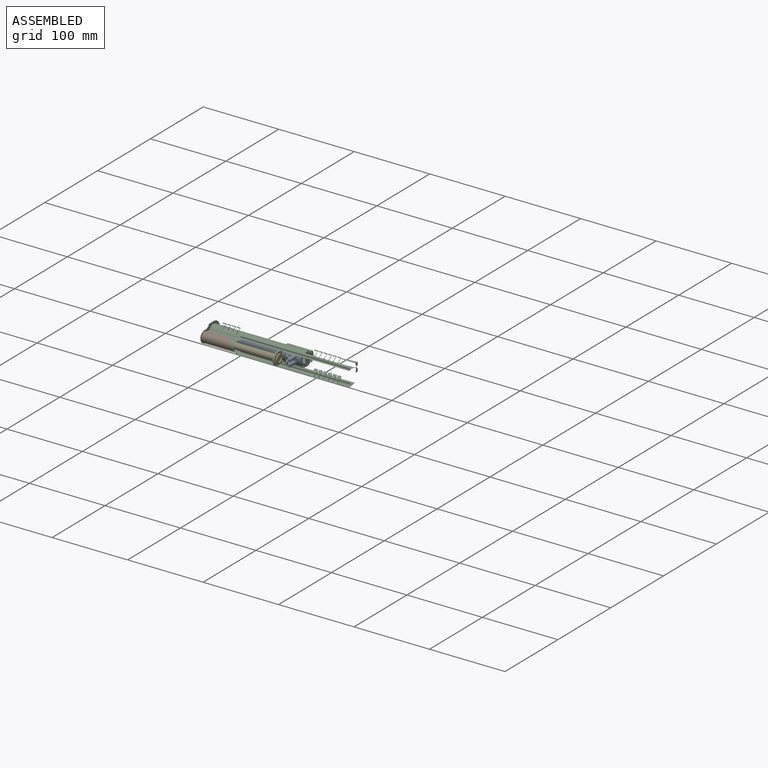
[diagram: assembled view]
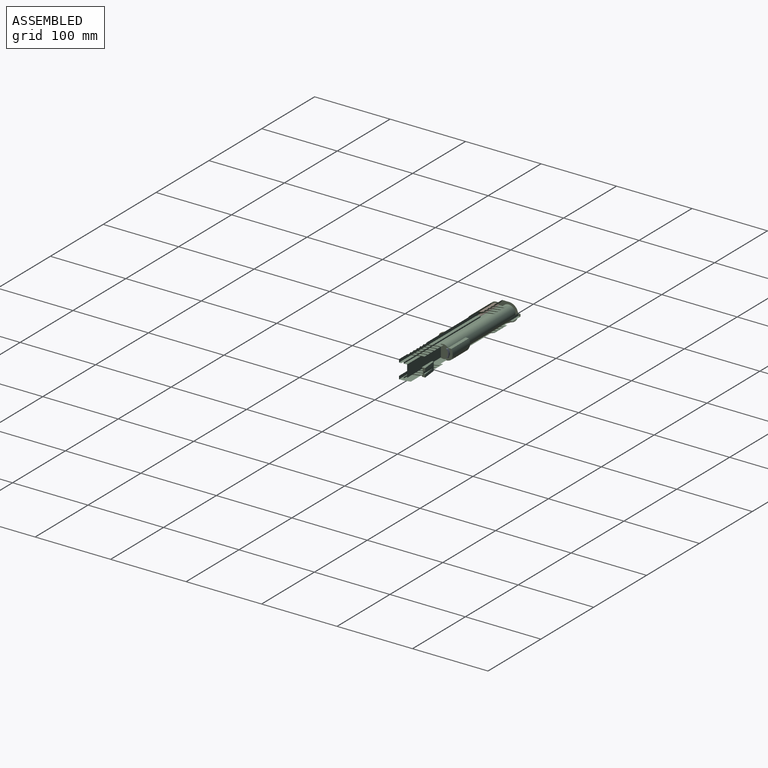
[diagram: assembled view, second angle]
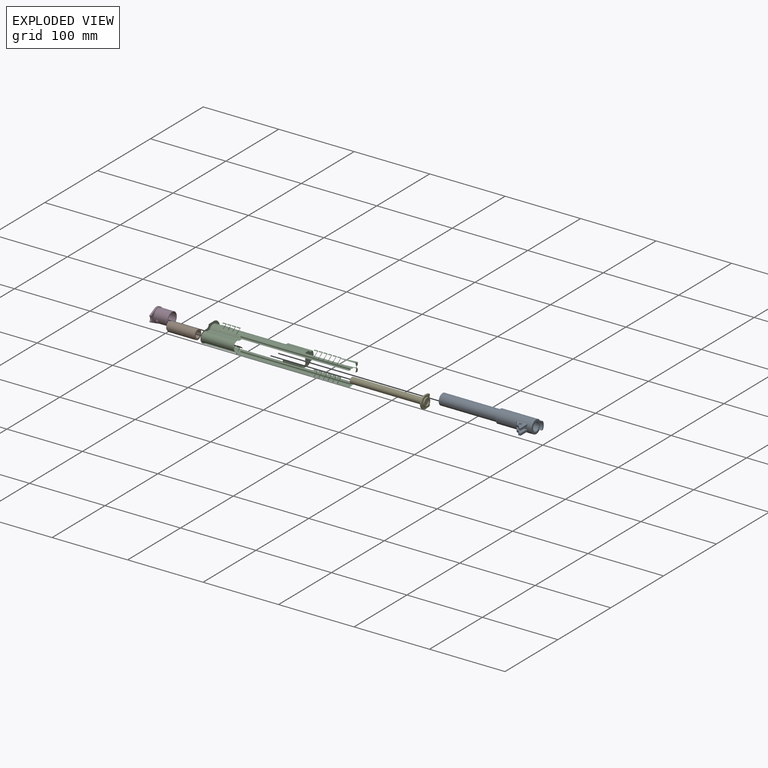
[diagram: exploded view]
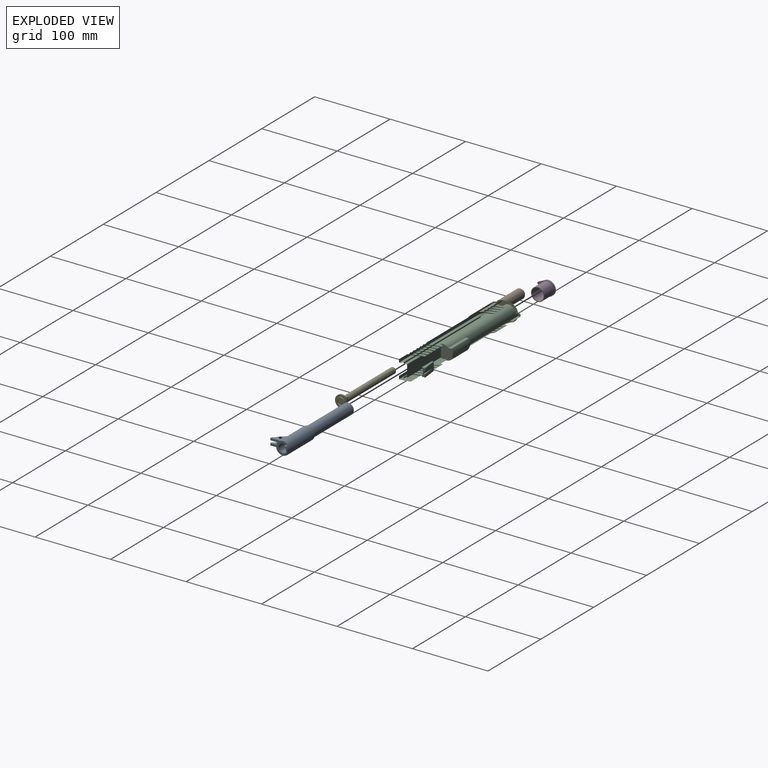
[diagram: exploded view, second angle]
ASSEMBLY  parts=5 mates=4
PART A: 30 faces, bbox 17.5x29.5x128 mm
  f0: plane 17.48x16.04mm, normal (0,0,-1), area 121.2mm2, adj f7,f9,f26,f27,f28
  f1: plane 2.93x2.8mm, normal (0,-1,0), area 8.2mm2, adj f6,f15,f18,f22
  f2: plane 2.8x1.25mm, normal (0,0,1), area 1.7mm2, adj f7,f12,f19,f25
  f3: plane 13.27x2.8mm, normal (0,0,-1), area 35.4mm2, adj f7,f12,f13,f19
  f4: cylinder r=2mm len=4mm, axis (-1,0,0), area 35.2mm2, adj f12,f19
  f5: plane 3.47x2.8mm, normal (0,-0.55,0.84), area 11.6mm2, adj f12,f19,f21,f25
  f6: plane 14.1x13.27mm, normal (-1,0,0), area 103mm2, adj f1,f7,f14,f15,f16,f17,f20,f22
  f7: cylinder r=8.74mm len=51.8mm, axis (0,0,-1), area 2586.4mm2, adj f0,f2,f3,f6,f8,f12,f14,f15
  f8: plane 17.48x17.48mm, normal (0,0,1), area 72.6mm2, adj f7,f10
  f9: cylinder r=5.69mm len=124mm, axis (0,0,-1), area 4433.2mm2, adj f0,f11
  f10: cylinder r=7.3mm len=76.2mm, axis (0,0,-1), area 3495.1mm2, adj f8,f11
  f11: plane 14.6x14.6mm, normal (0,0,1), area 65.7mm2, adj f9,f10
  f12: plane 14.1x13.27mm, normal (1,0,0), area 103mm2, adj f2,f3,f4,f5,f7,f13,f21,f23
  f13: plane 2.93x2.8mm, normal (0,-1,0), area 8.2mm2, adj f3,f12,f19,f23
  f14: plane 2.8x1.25mm, normal (0,0,1), area 1.7mm2, adj f6,f7,f18,f24
  f15: plane 13.27x2.8mm, normal (0,0,-1), area 35.4mm2, adj f1,f6,f7,f18
  f16: cylinder r=2mm len=4mm, axis (-1,0,0), area 35.2mm2, adj f6,f18
  f17: plane 3.47x2.8mm, normal (0,-0.55,0.84), area 11.6mm2, adj f6,f18,f20,f24
  f18: plane 14.1x12.19mm, normal (1,0,0), area 87.8mm2, adj f1,f7,f14,f15,f16,f17,f20,f22
  f19: plane 14.1x12.19mm, normal (-1,0,0), area 87.8mm2, adj f2,f3,f4,f5,f7,f13,f21,f23
  f20: cylinder r=5mm len=3.07mm, axis (-1,0,0), area 10.7mm2, adj f6,f17,f18,f22
  f21: cylinder r=5mm len=3.07mm, axis (-1,0,0), area 10.7mm2, adj f5,f12,f19,f23
  f22: cylinder r=5mm len=4.67mm, axis (1,0,0), area 18.3mm2, adj f1,f6,f18,f20
  f23: cylinder r=5mm len=4.67mm, axis (1,0,0), area 18.3mm2, adj f12,f13,f19,f21
  f24: cylinder r=5mm len=2.8mm, axis (1,0,0), area 7.4mm2, adj f6,f14,f17,f18
  f25: cylinder r=5mm len=2.8mm, axis (1,0,0), area 7.4mm2, adj f2,f5,f12,f19
  f26: plane 4x1.96mm, normal (1,0,0), area 7.8mm2, adj f0,f7,f28,f29
  f27: plane 4x1.96mm, normal (-1,0,0), area 7.8mm2, adj f0,f7,f28,f29
  f28: cylinder r=7.3mm len=10.8mm, axis (0,0,1), area 48.6mm2, adj f0,f26,f27,f29
  f29: plane 10.8x3.83mm, normal (0,0,-1), area 17.1mm2, adj f7,f26,f27,f28
PART B: 6 faces, bbox 12.6x12.6x38.6 mm
  f0: cylinder r=6.29mm len=36.7mm, axis (0,0,-1), area 1451.6mm2, adj f1,f2
  f1: plane 12.59x12.59mm, normal (0,0,1), area 46mm2, adj f0,f4
  f2: plane 12.59x12.59mm, normal (0,0,-1), area 69.1mm2, adj f0,f3
  f3: cylinder r=4.2mm len=38.6mm, axis (0,0,-1), area 1018.6mm2, adj f2,f5
  f4: cylinder r=5mm len=10mm, axis (0,0,-1), area 59.7mm2, adj f1,f5
  f5: plane 10x10mm, normal (0,0,1), area 23.1mm2, adj f3,f4
PART C: 134 faces, bbox 189x40x24 mm
  f0: plane 19.4x4.41mm, normal (0,0,-1), area 64.2mm2, adj f1,f128,f132,f133
  f1: cylinder r=12.01mm len=186.59mm, axis (-1,0,0), area 5313mm2, adj f0,f2,f33,f34,f35,f36,f37,f38
  f2: plane 21.13x14.11mm, normal (0,0,1), area 250.7mm2, adj f1,f3,f33,f126
  f3: plane 155.67x4.2mm, normal (0,-1,0), area 581.8mm2, adj f2,f4,f29,f30,f32,f33,f34,f35
  f4: plane 20.68x19.3mm, normal (1,0,0), area 103.2mm2, adj f3,f5,f6,f8,f9,f10,f11,f12
  f5: plane 43x5.13mm, normal (0,0,-1), area 220.5mm2, adj f4,f21,f28,f77
  f6: plane 145.58x4mm, normal (0,0,-1), area 526.8mm2, adj f4,f7,f8,f21,f97,f126
  f7: plane 63.81x16mm, normal (0,-1,0), area 1020.9mm2, adj f6,f20,f97,f126
  f8: plane 145.58x1.65mm, normal (0,-1,0), area 240.2mm2, adj f4,f6,f9,f126
  f9: plane 145.89x3mm, normal (0,0,-1), area 437.3mm2, adj f4,f8,f10,f126
  f10: plane 145.89x1.65mm, normal (0,1,0), area 240.7mm2, adj f4,f9,f29,f126
  f11: cylinder r=7.8mm len=43mm, axis (-1,0,0), area 1053.7mm2, adj f4,f12,f32,f77
  f12: plane 43x3.63mm, normal (0,0,-1), area 155.3mm2, adj f4,f11,f13,f14,f15,f77
  f13: cylinder r=4.22mm len=7.15mm, axis (0.71,-0.71,0), area 20.9mm2, adj f12,f14,f15,f92
  f14: cylinder r=4.22mm len=34.97mm, axis (1,0,0), area 213mm2, adj f12,f13,f77,f78,f79,f80,f81,f82
  f15: plane 155.67x4.2mm, normal (0,-1,0), area 581.8mm2, adj f4,f12,f13,f16,f92,f93,f101,f102
  f16: plane 146x3mm, normal (0,0,1), area 437.9mm2, adj f4,f15,f17,f126
  f17: plane 145.89x1.65mm, normal (0,1,0), area 240.7mm2, adj f4,f16,f18,f126
  f18: plane 145.89x3mm, normal (0,0,1), area 437.3mm2, adj f4,f17,f19,f126
  f19: plane 145.58x1.65mm, normal (0,-1,0), area 240.2mm2, adj f4,f18,f20,f126
  f20: plane 145.58x4mm, normal (0,0,1), area 526.8mm2, adj f4,f7,f19,f21,f97,f126
  f21: cylinder r=8.88mm len=124mm, axis (-1,0,0), area 4153.9mm2, adj f4,f5,f6,f20,f22,f24,f25,f26
  f22: plane 20.16x8.92mm, normal (1,0,0), area 44.7mm2, adj f21,f23,f24,f27
  f23: cylinder r=10.75mm len=20.16mm, axis (-1,0,0), area 79.8mm2, adj f22,f24,f25,f27
  f24: plane 3x1.83mm, normal (0,-0.21,-0.98), area 5.6mm2, adj f21,f22,f23,f25
  f25: plane 20.16x8.92mm, normal (-1,0,0), area 44.7mm2, adj f21,f23,f24,f27
  f26: plane 23x3.15mm, normal (0,1,0), area 72.4mm2, adj f21,f94,f100,f101
  f27: plane 43x5.13mm, normal (0,0,1), area 214.1mm2, adj f4,f21,f22,f23,f25,f28,f77
  f28: cylinder r=6.28mm len=43mm, axis (-1,0,0), area 1232mm2, adj f4,f5,f27,f77
  f29: plane 146x3mm, normal (0,0,-1), area 437.9mm2, adj f3,f4,f10,f126
  f30: cylinder r=4.22mm len=7.15mm, axis (-0.71,0.71,0), area 20.9mm2, adj f3,f31,f32,f58
  f31: cylinder r=4.22mm len=34.97mm, axis (-1,0,0), area 213mm2, adj f30,f32,f58,f59,f60,f61,f62,f63
  f32: plane 43x3.63mm, normal (0,0,1), area 155.3mm2, adj f3,f4,f11,f30,f31,f77
  f33: plane 17.97x6.54mm, normal (-0.94,-0.34,0), area 14.1mm2, adj f1,f2,f3,f34
  f34: plane 17.97x11.33mm, normal (0,0,1), area 86.1mm2, adj f1,f3,f33,f35
  f35: plane 17.97x6.54mm, normal (0.94,0.34,0), area 14.1mm2, adj f1,f3,f34,f36
  f36: plane 14.11x6.52mm, normal (0,0,1), area 19.5mm2, adj f1,f3,f35,f37
  f37: plane 17.97x6.54mm, normal (-0.94,-0.34,0), area 14.1mm2, adj f1,f3,f36,f38
  f38: plane 17.97x11.33mm, normal (0,0,1), area 86.1mm2, adj f1,f3,f37,f39
  f39: plane 17.97x6.54mm, normal (0.94,0.34,0), area 14.1mm2, adj f1,f3,f38,f40
  f40: plane 14.11x6.52mm, normal (0,0,1), area 19.5mm2, adj f1,f3,f39,f41
  f41: plane 17.97x6.54mm, normal (-0.94,-0.34,0), area 14.1mm2, adj f1,f3,f40,f42
  f42: plane 17.97x11.33mm, normal (0,0,1), area 86.1mm2, adj f1,f3,f41,f43
  f43: plane 17.97x6.54mm, normal (0.94,0.34,0), area 14.1mm2, adj f1,f3,f42,f44
  f44: plane 14.11x6.52mm, normal (0,0,1), area 19.5mm2, adj f1,f3,f43,f45
  f45: plane 17.97x6.54mm, normal (-0.94,-0.34,0), area 14.1mm2, adj f1,f3,f44,f46
  f46: plane 17.97x11.33mm, normal (0,0,1), area 86.1mm2, adj f1,f3,f45,f47
  f47: plane 17.97x6.54mm, normal (0.94,0.34,0), area 14.1mm2, adj f1,f3,f46,f48
  f48: plane 14.11x6.52mm, normal (0,0,1), area 19.5mm2, adj f1,f3,f47,f49
  f49: plane 17.97x6.54mm, normal (-0.94,-0.34,0), area 14.1mm2, adj f1,f3,f48,f50
  f50: plane 17.97x11.33mm, normal (0,0,1), area 86.1mm2, adj f1,f3,f49,f51
  f51: plane 17.97x6.54mm, normal (0.94,0.34,0), area 14.1mm2, adj f1,f3,f50,f52
  f52: plane 14.11x6.52mm, normal (0,0,1), area 19.5mm2, adj f1,f3,f51,f53
  f53: plane 17.97x6.54mm, normal (-0.94,-0.34,0), area 14.1mm2, adj f1,f3,f52,f54
  f54: plane 17.97x11.33mm, normal (0,0,1), area 86.1mm2, adj f1,f3,f53,f55
  f55: plane 17.97x6.54mm, normal (0.94,0.34,0), area 14.1mm2, adj f1,f3,f54,f56
  f56: plane 103.07x14.11mm, normal (0,0,1), area 1381.6mm2, adj f1,f3,f55,f57
  f57: plane 17.97x6.54mm, normal (-0.94,-0.34,0), area 14.1mm2, adj f1,f3,f56,f58
  f58: plane 17.97x11.33mm, normal (0,0,1), area 72.5mm2, adj f1,f3,f30,f31,f57,f59
  f59: plane 13.77x5.02mm, normal (0.94,0.34,0), area 10.5mm2, adj f1,f31,f58,f60
  f60: plane 9.81x4.95mm, normal (0,0,1), area 13.6mm2, adj f1,f31,f59,f61
  f61: plane 13.77x5.02mm, normal (-0.94,-0.34,0), area 10.5mm2, adj f1,f31,f60,f62
  f62: plane 13.75x9.8mm, normal (0,0,1), area 65.9mm2, adj f1,f31,f61,f63
  f63: plane 13.77x5.02mm, normal (0.94,0.34,0), area 10.5mm2, adj f1,f31,f62,f64
  f64: plane 9.81x4.95mm, normal (0,0,1), area 13.6mm2, adj f1,f31,f63,f65
  f65: plane 13.77x5.02mm, normal (-0.94,-0.34,0), area 10.5mm2, adj f1,f31,f64,f66
  f66: plane 13.75x9.8mm, normal (0,0,1), area 65.9mm2, adj f1,f31,f65,f67
  f67: plane 13.77x5.02mm, normal (0.94,0.34,0), area 10.5mm2, adj f1,f31,f66,f68
  f68: plane 9.81x4.95mm, normal (0,0,1), area 13.6mm2, adj f1,f31,f67,f69
  f69: plane 13.77x5.02mm, normal (-0.94,-0.34,0), area 10.5mm2, adj f1,f31,f68,f70
  f70: plane 13.75x9.8mm, normal (0,0,1), area 65.9mm2, adj f1,f31,f69,f71
  f71: plane 13.77x5.02mm, normal (0.94,0.34,0), area 10.5mm2, adj f1,f31,f70,f72
  f72: plane 14.54x9.81mm, normal (0,0,1), area 125.1mm2, adj f1,f31,f71,f77
  f73: plane 15x3.11mm, normal (0,0,1), area 46.7mm2, adj f1,f74,f75,f77
  f74: plane 15x3.3mm, normal (0,1,0), area 49.5mm2, adj f73,f75,f76,f77
  f75: plane 3.3x3.11mm, normal (1,0,0), area 10mm2, adj f1,f73,f74,f76
  f76: plane 15x3.11mm, normal (0,0,-1), area 46.7mm2, adj f1,f74,f75,f77
  f77: plane 40x24mm, normal (-1,0,0), area 289.8mm2, adj f1,f5,f11,f12,f14,f21,f27,f28
  f78: plane 14.54x9.81mm, normal (0,0,-1), area 125.1mm2, adj f1,f14,f77,f79
  f79: plane 13.77x5.02mm, normal (0.94,0.34,0), area 10.5mm2, adj f1,f14,f78,f80
  f80: plane 13.75x9.8mm, normal (0,0,-1), area 65.9mm2, adj f1,f14,f79,f81
  f81: plane 13.77x5.02mm, normal (-0.94,-0.34,0), area 10.5mm2, adj f1,f14,f80,f82
  f82: plane 9.81x4.95mm, normal (0,0,-1), area 13.6mm2, adj f1,f14,f81,f83
  f83: plane 13.77x5.02mm, normal (0.94,0.34,0), area 10.5mm2, adj f1,f14,f82,f84
  f84: plane 13.75x9.8mm, normal (0,0,-1), area 65.9mm2, adj f1,f14,f83,f85
  f85: plane 13.77x5.02mm, normal (-0.94,-0.34,0), area 10.5mm2, adj f1,f14,f84,f86
  f86: plane 9.81x4.95mm, normal (0,0,-1), area 13.6mm2, adj f1,f14,f85,f87
  f87: plane 13.77x5.02mm, normal (0.94,0.34,0), area 10.5mm2, adj f1,f14,f86,f88
  f88: plane 13.75x9.8mm, normal (0,0,-1), area 65.9mm2, adj f1,f14,f87,f89
  f89: plane 13.77x5.02mm, normal (-0.94,-0.34,0), area 10.5mm2, adj f1,f14,f88,f90
  f90: plane 9.81x4.95mm, normal (0,0,-1), area 13.6mm2, adj f1,f14,f89,f91
  f91: plane 13.77x5.02mm, normal (0.94,0.34,0), area 10.5mm2, adj f1,f14,f90,f92
  f92: plane 17.97x11.33mm, normal (0,0,-1), area 72.5mm2, adj f1,f13,f14,f15,f91,f93
  f93: plane 17.97x6.54mm, normal (-0.94,-0.34,0), area 14.1mm2, adj f1,f15,f92,f101
  f94: cylinder r=3mm len=3.45mm, axis (0,0,-1), area 15.4mm2, adj f1,f21,f26,f95,f101
  f95: plane 17.86x10.1mm, normal (1,0,0), area 72.3mm2, adj f1,f21,f94,f96
  f96: plane 33x4.33mm, normal (0,0,-1), area 142.9mm2, adj f1,f21,f95,f97
  f97: plane 17.75x16.32mm, normal (-1,0,0), area 220.6mm2, adj f1,f6,f7,f20,f21,f96,f98
  f98: plane 4.05x4mm, normal (0,0,1), area 16.2mm2, adj f1,f21,f97,f99
  f99: plane 9.01x6.86mm, normal (-1,0,0), area 30.7mm2, adj f1,f21,f98,f100
  f100: cylinder r=3mm len=3.45mm, axis (0,0,-1), area 15.4mm2, adj f1,f21,f26,f99,f101
  f101: plane 103.07x14.11mm, normal (0,0,-1), area 1339.9mm2, adj f1,f15,f26,f93,f94,f100,f102
  f102: plane 17.97x6.54mm, normal (0.94,0.34,0), area 14.1mm2, adj f1,f15,f101,f103
  f103: plane 17.97x11.33mm, normal (0,0,-1), area 86.1mm2, adj f1,f15,f102,f104
  f104: plane 17.97x6.54mm, normal (-0.94,-0.34,0), area 14.1mm2, adj f1,f15,f103,f105
  f105: plane 14.11x6.52mm, normal (0,0,-1), area 19.5mm2, adj f1,f15,f104,f106
  f106: plane 17.97x6.54mm, normal (0.94,0.34,0), area 14.1mm2, adj f1,f15,f105,f107
  f107: plane 17.97x11.33mm, normal (0,0,-1), area 86.1mm2, adj f1,f15,f106,f108
  f108: plane 17.97x6.54mm, normal (-0.94,-0.34,0), area 14.1mm2, adj f1,f15,f107,f109
  f109: plane 14.11x6.52mm, normal (0,0,-1), area 19.5mm2, adj f1,f15,f108,f110
  f110: plane 17.97x6.54mm, normal (0.94,0.34,0), area 14.1mm2, adj f1,f15,f109,f111
  f111: plane 17.97x11.33mm, normal (0,0,-1), area 86.1mm2, adj f1,f15,f110,f112
  f112: plane 17.97x6.54mm, normal (-0.94,-0.34,0), area 14.1mm2, adj f1,f15,f111,f113
  f113: plane 14.11x6.52mm, normal (0,0,-1), area 19.5mm2, adj f1,f15,f112,f114
  f114: plane 17.97x6.54mm, normal (0.94,0.34,0), area 14.1mm2, adj f1,f15,f113,f115
  f115: plane 17.97x11.33mm, normal (0,0,-1), area 86.1mm2, adj f1,f15,f114,f116
  f116: plane 17.97x6.54mm, normal (-0.94,-0.34,0), area 14.1mm2, adj f1,f15,f115,f117
  f117: plane 14.11x6.52mm, normal (0,0,-1), area 19.5mm2, adj f1,f15,f116,f118
  f118: plane 17.97x6.54mm, normal (0.94,0.34,0), area 14.1mm2, adj f1,f15,f117,f119
  f119: plane 17.97x11.33mm, normal (0,0,-1), area 86.1mm2, adj f1,f15,f118,f120
  f120: plane 17.97x6.54mm, normal (-0.94,-0.34,0), area 14.1mm2, adj f1,f15,f119,f121
  f121: plane 14.11x6.52mm, normal (0,0,-1), area 19.5mm2, adj f1,f15,f120,f122
  f122: plane 17.97x6.54mm, normal (0.94,0.34,0), area 14.1mm2, adj f1,f15,f121,f123
  f123: plane 17.97x11.33mm, normal (0,0,-1), area 86.1mm2, adj f1,f15,f122,f124
  f124: plane 17.97x6.54mm, normal (-0.94,-0.34,0), area 14.1mm2, adj f1,f15,f123,f125
  f125: plane 21.13x14.11mm, normal (0,0,-1), area 250.7mm2, adj f1,f15,f124,f126
  f126: cylinder r=42.55mm len=25.65mm, axis (0,0,1), area 415.7mm2, adj f1,f2,f3,f6,f7,f8,f9,f10
  f127: plane 19.4x4.41mm, normal (0,0,1), area 64.2mm2, adj f1,f128,f132,f133
  f128: plane 11.3x4.41mm, normal (1,0,0), area 32.5mm2, adj f0,f1,f127,f129,f130,f131,f132
  f129: plane 17.59x2mm, normal (0,0,1), area 17.6mm2, adj f128,f131,f132
  f130: plane 17.59x2mm, normal (0,0,-1), area 17.6mm2, adj f128,f131,f132
  f131: plane 17.59x3.3mm, normal (0,1,0), area 58mm2, adj f128,f129,f130,f132
  f132: plane 19.4x11.3mm, normal (-0.11,0.99,0), area 162.2mm2, adj f0,f127,f128,f129,f130,f131,f133
  f133: plane 11.3x2.21mm, normal (-1,0,0), area 14.2mm2, adj f0,f1,f127,f132
PART D: 19 faces, bbox 19x23x20.8 mm
  f0: cylinder r=7.8mm len=20.3mm, axis (0,0,-1), area 994.9mm2, adj f2,f18
  f1: cylinder r=8.8mm len=18.5mm, axis (0,0,-1), area 1006.1mm2, adj f2,f10,f12,f13,f14,f15
  f2: plane 17.6x17.6mm, normal (0,0,1), area 52.2mm2, adj f0,f1
  f3: plane 22.99x19mm, normal (0,0,-1), area 112.6mm2, adj f4,f5,f6,f7,f8,f9,f18
  f4: cylinder r=0.7mm len=2.3mm, axis (0,0,-1), area 3mm2, adj f3,f5,f9,f10
  f5: cylinder r=4.62mm len=6.21mm, axis (0,0,-1), area 15.6mm2, adj f3,f4,f6,f10
  f6: cylinder r=0.7mm len=2.3mm, axis (0,0,-1), area 3mm2, adj f3,f5,f7,f10
  f7: plane 8.95x4.34mm, normal (0.9,-0.44,0), area 22.9mm2, adj f3,f6,f8,f10
  f8: cylinder r=9.5mm len=19mm, axis (0,0,-1), area 88.4mm2, adj f3,f7,f9,f10
  f9: plane 8.95x4.34mm, normal (-0.9,-0.44,0), area 22.9mm2, adj f3,f4,f8,f10
  f10: plane 22.99x19mm, normal (0,0,1), area 85.7mm2, adj f1,f4,f5,f6,f7,f8,f9
  f11: cylinder r=9.99mm len=2.3mm, axis (0,0,-1), area 3.7mm2, adj f12,f13,f16,f17
  f12: plane 6.22x3.95mm, normal (0,0,1), area 5.4mm2, adj f1,f11,f14,f15,f16,f17
  f13: plane 6.22x3.95mm, normal (0,0,-1), area 5.4mm2, adj f1,f11,f14,f15,f16,f17
  f14: cylinder r=3mm len=2.3mm, axis (0,0,1), area 3.8mm2, adj f1,f12,f13,f17
  f15: cylinder r=3mm len=2.3mm, axis (0,0,1), area 3.8mm2, adj f1,f12,f13,f16
  f16: cylinder r=2mm len=2.3mm, axis (0,0,1), area 4.1mm2, adj f11,f12,f13,f15
  f17: cylinder r=2mm len=2.3mm, axis (0,0,1), area 4.1mm2, adj f11,f12,f13,f14
  f18: cone r=8.3mm half-angle=45deg, axis (0,0,-1), area 35.8mm2, adj f0,f3
PART E: 16 faces, bbox 16.5x15.8x99.8 mm
  f0: cylinder r=4mm len=8mm, axis (0,0,-1), area 45.2mm2, adj f9,f15
  f1: cylinder r=8.25mm len=16.5mm, axis (0,0,-1), area 67.6mm2, adj f2,f5,f6,f7
  f2: plane 3.17x2.2mm, normal (-1,0,0), area 7mm2, adj f1,f6,f7,f10
  f3: cylinder r=25mm len=5.36mm, axis (0,0,-1), area 11.9mm2, adj f6,f7,f10,f11
  f4: cylinder r=25mm len=5.36mm, axis (0,0,-1), area 11.9mm2, adj f6,f7,f11,f12
  f5: plane 3.17x2.2mm, normal (1,0,0), area 7mm2, adj f1,f6,f7,f12
  f6: plane 16.5x15.8mm, normal (0,0,1), area 169.6mm2, adj f1,f2,f3,f4,f5,f10,f11,f12
  f7: plane 16.5x15.8mm, normal (0,0,-1), area 119.5mm2, adj f1,f2,f3,f4,f5,f8,f10,f11
  f8: cylinder r=5.65mm len=11.3mm, axis (0,0,1), area 63.9mm2, adj f7,f9
  f9: plane 11.3x11.3mm, normal (0,0,-1), area 50mm2, adj f0,f8
  f10: cylinder r=2mm len=2.49mm, axis (0,0,-1), area 8mm2, adj f2,f3,f6,f7
  f11: cylinder r=2mm len=2.2mm, axis (0,0,1), area 0.2mm2, adj f3,f4,f6,f7
  f12: cylinder r=2mm len=2.49mm, axis (0,0,-1), area 8mm2, adj f4,f5,f6,f7
  f13: plane 8x8mm, normal (0,0,1), area 50.3mm2, adj f14
  f14: cylinder r=4mm len=95.8mm, axis (0,0,-1), area 2407.7mm2, adj f6,f13
  f15: plane 8x8mm, normal (0,0,-1), area 50.3mm2, adj f0
PLACE A rot(axis=(0,-1,0),90deg) t=(79.98,8,-10.37)mm
PLACE B rot(axis=(0,-1,0),90deg) t=(-5.42,-8.72,-10.37)mm
PLACE C t=(43.4,38.42,-22.37)mm
PLACE D rot(axis=(0,1,0),90deg) t=(-44.52,8,-10.37)mm
PLACE E rot(axis=(0.71,0,-0.71),180deg) t=(55.98,-8.72,-10.37)mm
MATE revolute D.f0 <-> C.f21  axis (-1,0,0) through (-44.52,8,-10.37)mm
MATE revolute E.f0 <-> C.f11  axis (-1,0,0) through (-42.02,-8.72,-10.37)mm
MATE revolute A.f9 <-> D.f0  axis (1,0,0) through (-44.02,8,-10.37)mm
MATE revolute B.f4 <-> C.f11  axis (-1,0,0) through (-44.02,-8.72,-10.37)mm
